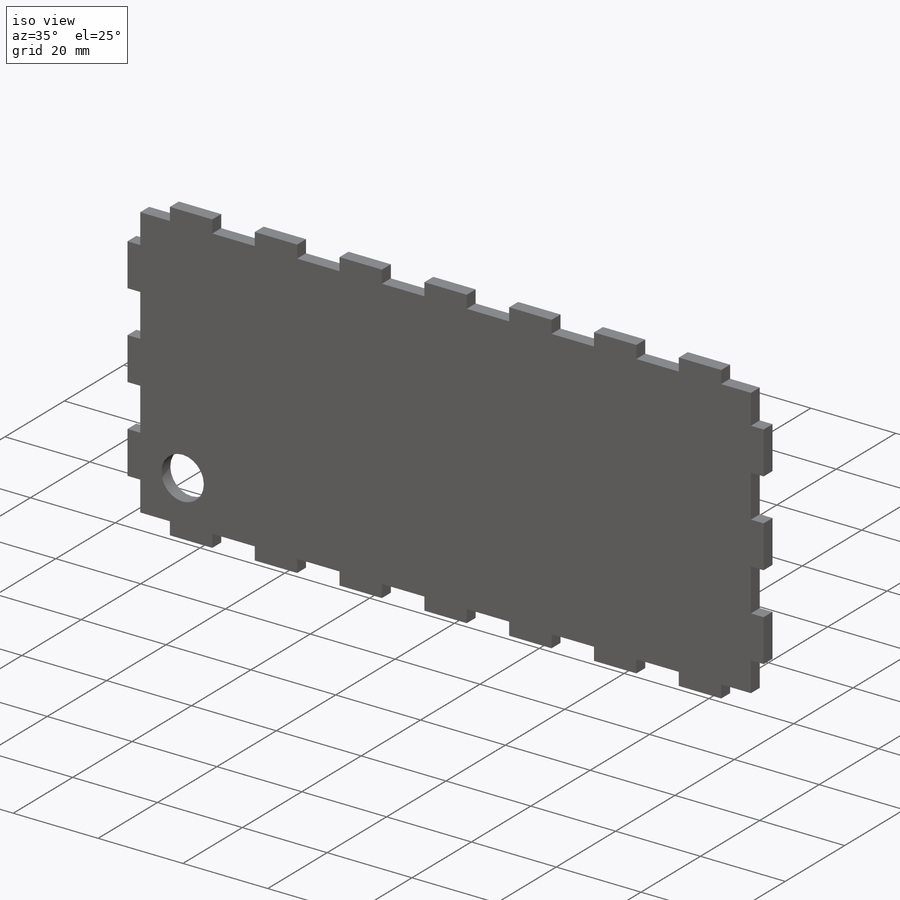
[diagram: iso view]
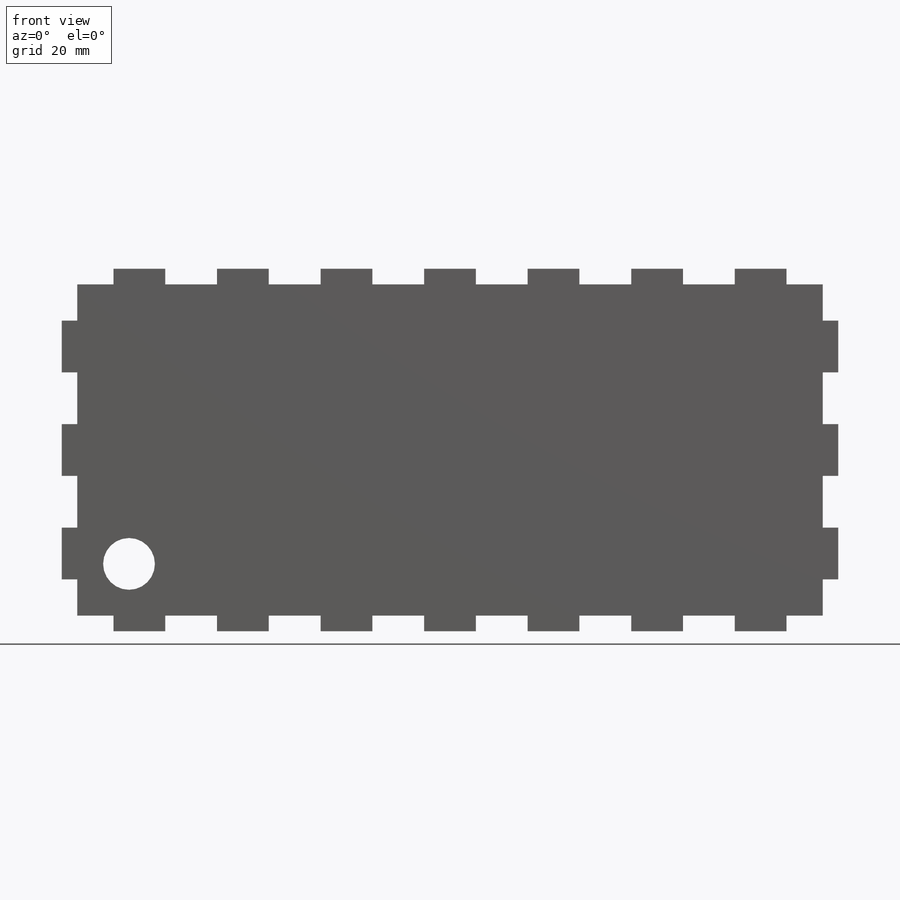
[diagram: front view]
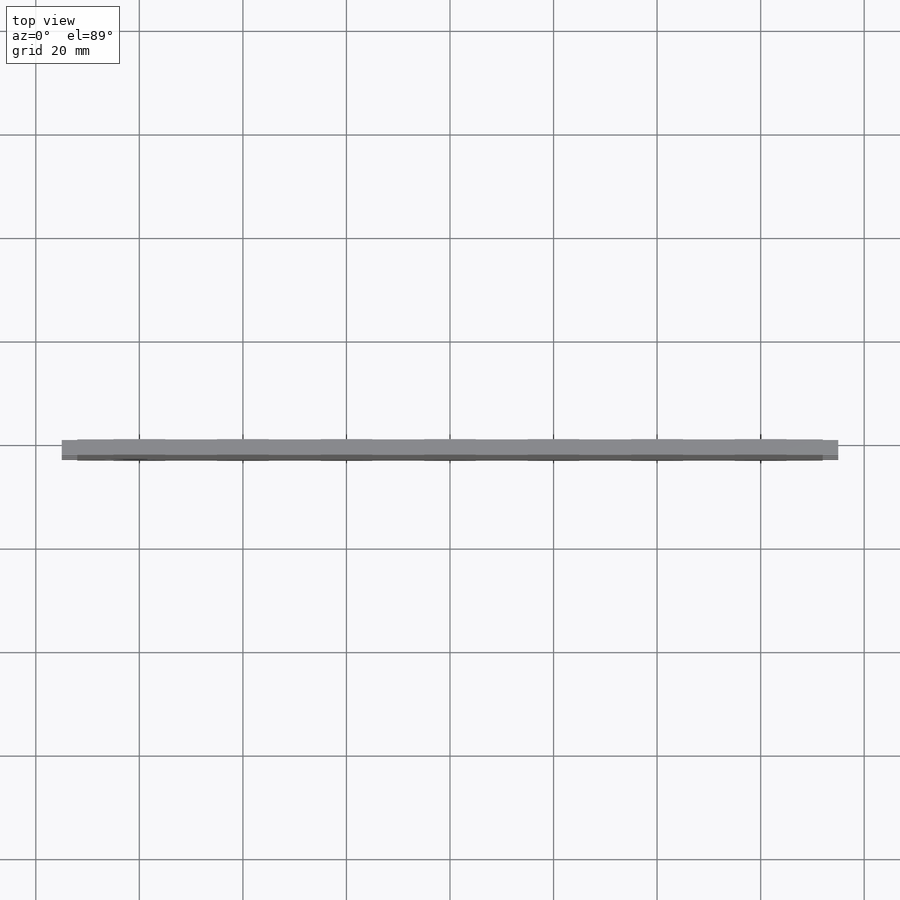
[diagram: top view]
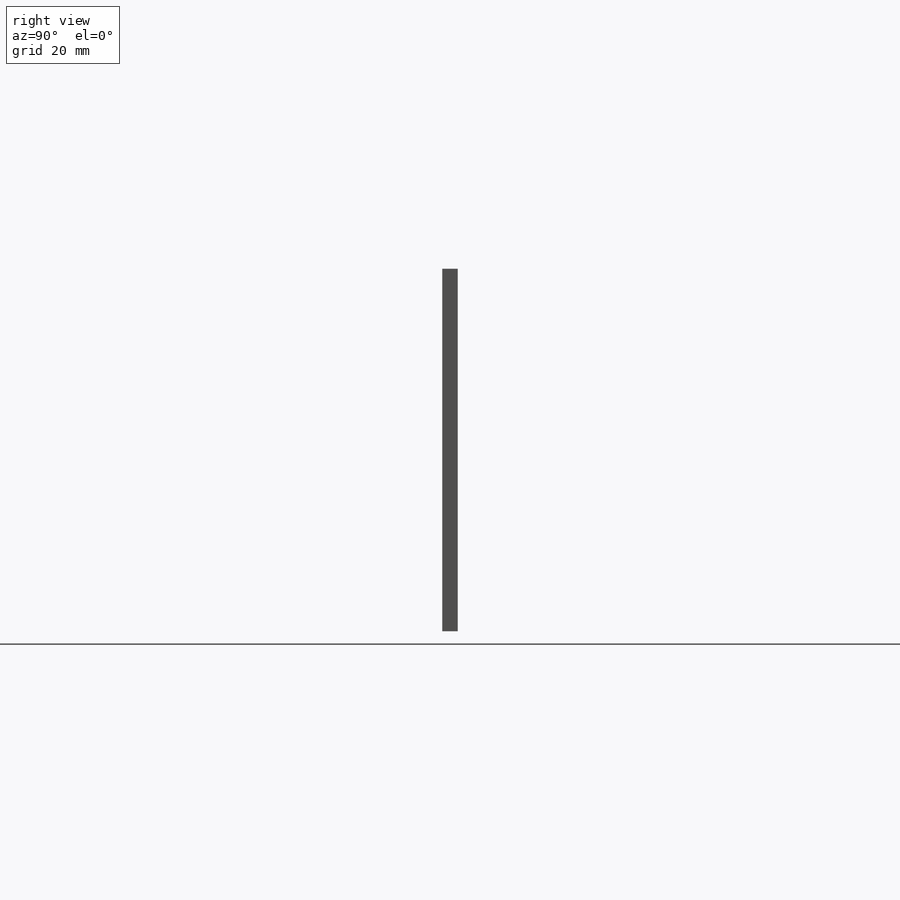
[diagram: right view]
SOLIDWORKS PART (.sldprt)
format: sldprt  version: not decoded by parser v0  size: 250,368 bytes
history: native  units: mm
features: sketch x4, cut_extrude x3, pattern_linear x2, mirror x2, material x1, extrude x1 (+13 scaffold rows collapsed)
feature tree (26):
  scaffold x13  (default folders/planes/origin — collapsed)
  material  "Material <not specified>"
  sketch  "Sketch1"  dims[D1=150.0mm D2=70.0mm]
  extrude  "Boss-Extrude1"  Depth=3mm
  sketch  "Sketch2"  dims[D1=3.0mm D2=10.0mm]
  cut_extrude  "Cut-Extrude1"  Depth=3mm
  pattern_linear  "LPattern3"  Count1=8 Count2=1 Spacing1=20mm Spacing2=50mm
  mirror  "Mirror1"
  sketch  "Sketch3"  dims[D1=10.0mm D2=3.0mm D3=3.0mm]
  cut_extrude  "Cut-Extrude2"  Depth=3mm
  pattern_linear  "LPattern4"  Count1=4 Count2=1 Spacing1=20mm Spacing2=50mm
  mirror  "Mirror2"
  sketch  "Sketch6"  dims[c1.D1=10.0mm c1.D2=13.0mm c1.D3=~11.375137mm c2.D3=90.0deg c3.D3=13.0mm]
  cut_extrude  "Cut-Extrude3"  Depth=3mm
decode coverage: 10 of 12 modeling features carry decoded parameters
note: ~ marks probable driven/reference dimensions
note: suppression state not decoded; provenance and decode notes live in map.json
